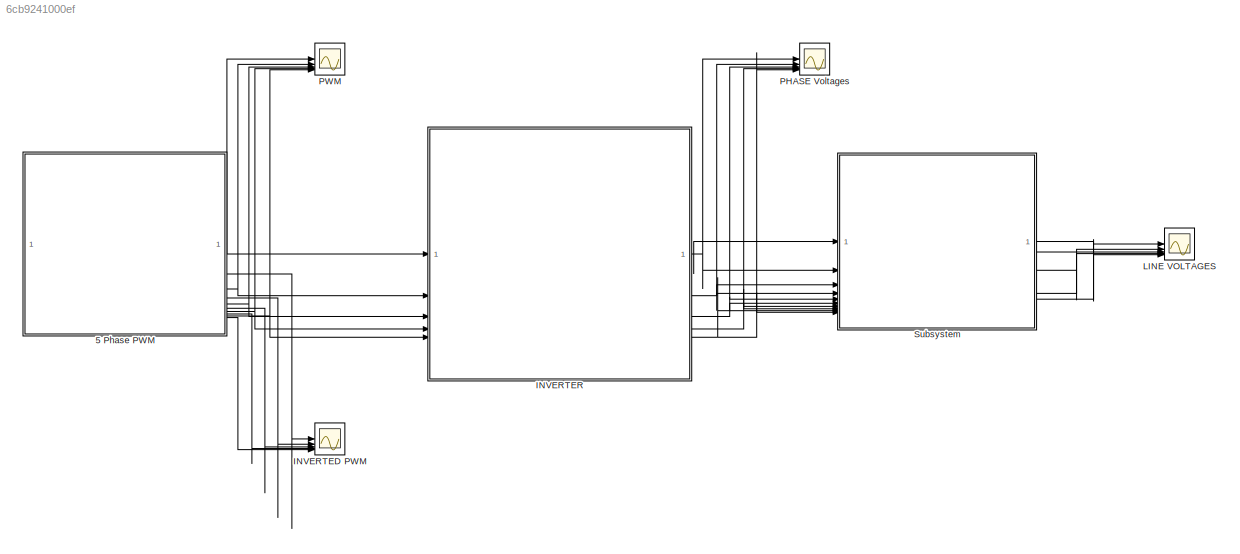
MODEL slx_6cb9241000ef
KIND model
CONFIG AbsTol = auto
CONFIG EnableMultiTasking = off
CONFIG FixedStep = 10e-6
CONFIG MaxStep = auto
CONFIG MinStep = auto
CONFIG RelTol = 1e-3
CONFIG SampleTimeConstraint = Unconstrained
CONFIG SolverName = FixedStepAuto
CONFIG StartTime = 0.0
CONFIG StopTime = 1
BLOCK [Scope]  PWM
  Floating = off
  NumInputPorts = 5
  ScopeSpecificationString = Simulink.scopes.TimeScopeBlockCfg('CurrentConfiguration', extmgr.ConfigurationSet(extmgr.Configuration('Core','General UI',true),extmgr.Configuration('Core','Source UI',true),extmgr.Configuration('Sources','WiredSimulink',true,'DataLoggingVariableName','ScopeData2'),extmgr.Configuration('Visuals','Time Domain',true,'SerializedDisplays',{struct('MinYLimReal','-0.125','MaxYLimReal','1.125','YLabelRe...<+6831ch>
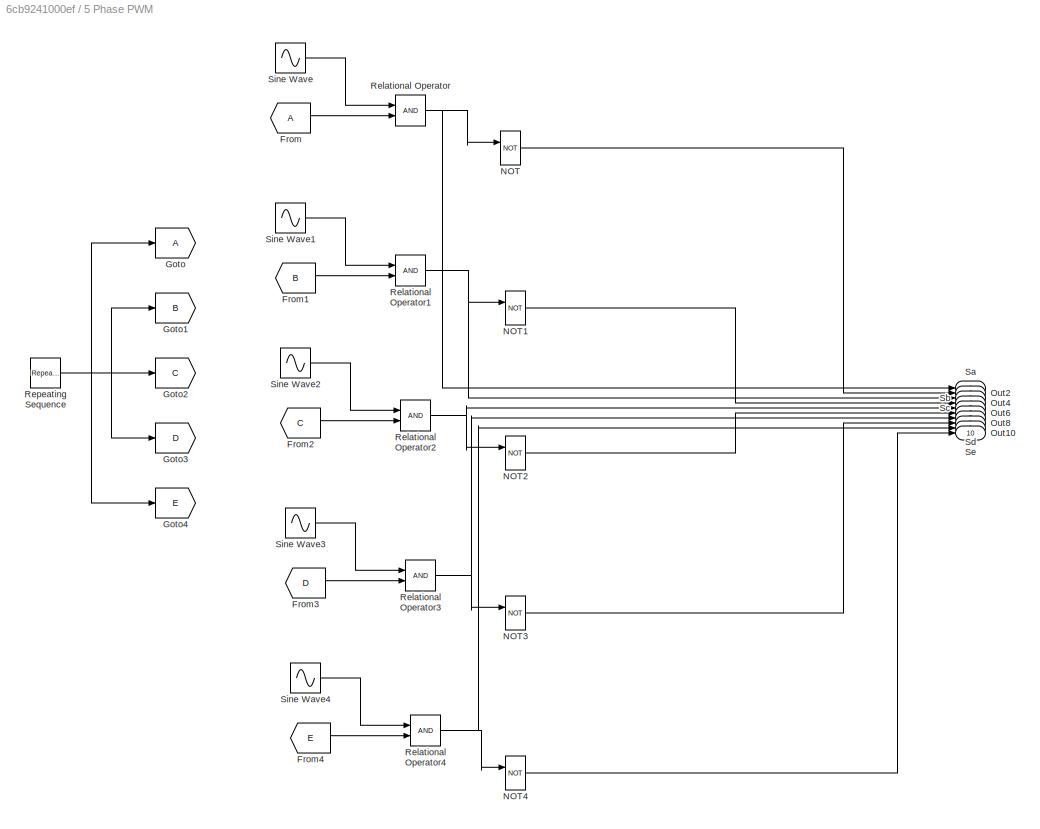
BLOCK [SubSystem] 5 Phase PWM
BLOCK [From] 5 Phase PWM/From
BLOCK [From] 5 Phase PWM/From1
  GotoTag = B
BLOCK [From] 5 Phase PWM/From2
  GotoTag = C
BLOCK [From] 5 Phase PWM/From3
  GotoTag = D
BLOCK [From] 5 Phase PWM/From4
  GotoTag = E
BLOCK [Goto] 5 Phase PWM/Goto
BLOCK [Goto] 5 Phase PWM/Goto1
  GotoTag = B
BLOCK [Goto] 5 Phase PWM/Goto2
  GotoTag = C
BLOCK [Goto] 5 Phase PWM/Goto3
  GotoTag = D
BLOCK [Goto] 5 Phase PWM/Goto4
  GotoTag = E
BLOCK [Logic] 5 Phase PWM/NOT
  AllPortsSameDT = off
  IconShape = distinctive
  Operator = NOT
  OutDataTypeStr = boolean
BLOCK [Logic] 5 Phase PWM/NOT1
  AllPortsSameDT = off
  IconShape = distinctive
  Operator = NOT
  OutDataTypeStr = boolean
BLOCK [Logic] 5 Phase PWM/NOT2
  AllPortsSameDT = off
  IconShape = distinctive
  Operator = NOT
  OutDataTypeStr = boolean
BLOCK [Logic] 5 Phase PWM/NOT3
  AllPortsSameDT = off
  IconShape = distinctive
  Operator = NOT
  OutDataTypeStr = boolean
BLOCK [Logic] 5 Phase PWM/NOT4
  AllPortsSameDT = off
  IconShape = distinctive
  Operator = NOT
  OutDataTypeStr = boolean
BLOCK [Outport] 5 Phase PWM/Out10
  Port = 10
BLOCK [Outport] 5 Phase PWM/Out2
  Port = 2
BLOCK [Outport] 5 Phase PWM/Out4
  Port = 4
BLOCK [Outport] 5 Phase PWM/Out6
  Port = 6
BLOCK [Outport] 5 Phase PWM/Out8
  Port = 8
BLOCK [RelationalOperator] 5 Phase PWM/Relational Operator
  InputSameDT = off
  OutDataTypeStr = boolean
  RndMeth = Simplest
BLOCK [RelationalOperator] 5 Phase PWM/Relational Operator1
  InputSameDT = off
  OutDataTypeStr = boolean
  RndMeth = Simplest
BLOCK [RelationalOperator] 5 Phase PWM/Relational Operator2
  InputSameDT = off
  OutDataTypeStr = boolean
  RndMeth = Simplest
BLOCK [RelationalOperator] 5 Phase PWM/Relational Operator3
  InputSameDT = off
  OutDataTypeStr = boolean
  RndMeth = Simplest
BLOCK [RelationalOperator] 5 Phase PWM/Relational Operator4
  InputSameDT = off
  OutDataTypeStr = boolean
  RndMeth = Simplest
BLOCK [Reference] 5 Phase PWM/Repeating Sequence  REF=simulink/Sources/Repeating
Sequence
  SourceBlock = simulink/Sources/Repeating\nSequence
  SourceType = Repeating table
BLOCK [Outport] 5 Phase PWM/Sa
BLOCK [Outport] 5 Phase PWM/Sb
  Port = 3
BLOCK [Outport] 5 Phase PWM/Sc
  Port = 5
BLOCK [Outport] 5 Phase PWM/Sd
  Port = 7
BLOCK [Outport] 5 Phase PWM/Se
  Port = 9
BLOCK [Sin] 5 Phase PWM/Sine Wave
  Amplitude = 0.9
  Frequency = 2*pi*50
  SampleTime = 0
BLOCK [Sin] 5 Phase PWM/Sine Wave1
  Amplitude = 0.9
  Frequency = 2*pi*50
  Phase = (2*pi)/5
  SampleTime = 0
BLOCK [Sin] 5 Phase PWM/Sine Wave2
  Amplitude = 0.9
  Frequency = 2*pi*50
  Phase = (4*pi)/5
  SampleTime = 0
BLOCK [Sin] 5 Phase PWM/Sine Wave3
  Amplitude = 0.9
  Frequency = 2*pi*50
  Phase = (6*pi)/5
  SampleTime = 0
BLOCK [Sin] 5 Phase PWM/Sine Wave4
  Amplitude = 0.9
  Frequency = 2*pi*50
  Phase = (8*pi)/5
  SampleTime = 0
BLOCK [Scope] INVERTED PWM
  Floating = off
  NumInputPorts = 5
  ScopeSpecificationString = Simulink.scopes.TimeScopeBlockCfg('CurrentConfiguration', extmgr.ConfigurationSet(extmgr.Configuration('Core','General UI',true),extmgr.Configuration('Core','Source UI',true),extmgr.Configuration('Sources','WiredSimulink',true),extmgr.Configuration('Visuals','Time Domain',true,'SerializedDisplays',{struct('MinYLimReal','-0.125','MaxYLimReal','1.125','YLabelReal','','MinYLimMag','0.00000','MaxYLimM...<+6792ch>
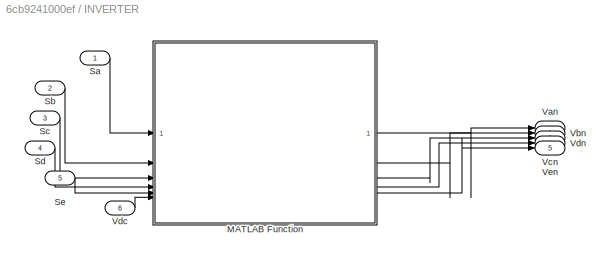
BLOCK [SubSystem] INVERTER
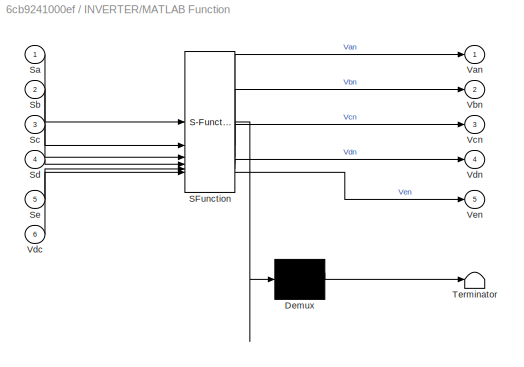
BLOCK [SubSystem] INVERTER/MATLAB Function
  ErrorFcn = Stateflow.Translate.translate
  PermitHierarchicalResolution = ExplicitOnly
  SFBlockType = MATLAB Function
  TreatAsAtomicUnit = on
BLOCK [Demux] INVERTER/MATLAB Function/ Demux 
  Outputs = 1
BLOCK [S-Function] INVERTER/MATLAB Function/ SFunction 
  EnableBusSupport = on
  FunctionName = sf_sfun
  PortCounts = [6 6]
  SFcnIsStateOwnerBlock = off
  SFunctionDeploymentMode = off
  Tag = Stateflow S-Function 2
BLOCK [Terminator] INVERTER/MATLAB Function/ Terminator 
BLOCK [Inport] INVERTER/MATLAB Function/Sa
BLOCK [Inport] INVERTER/MATLAB Function/Sb
  Port = 2
BLOCK [Inport] INVERTER/MATLAB Function/Sc
  Port = 3
BLOCK [Inport] INVERTER/MATLAB Function/Sd
  Port = 4
BLOCK [Inport] INVERTER/MATLAB Function/Se
  Port = 5
BLOCK [Outport] INVERTER/MATLAB Function/Van
BLOCK [Outport] INVERTER/MATLAB Function/Vbn
  Port = 2
BLOCK [Outport] INVERTER/MATLAB Function/Vcn
  Port = 3
BLOCK [Inport] INVERTER/MATLAB Function/Vdc
  Port = 6
BLOCK [Outport] INVERTER/MATLAB Function/Vdn
  Port = 4
BLOCK [Outport] INVERTER/MATLAB Function/Ven
  Port = 5
BLOCK [Inport] INVERTER/Sa
BLOCK [Inport] INVERTER/Sb
  Port = 2
BLOCK [Inport] INVERTER/Sc
  Port = 3
BLOCK [Inport] INVERTER/Sd
  Port = 4
BLOCK [Inport] INVERTER/Se
  Port = 5
BLOCK [Outport] INVERTER/Van
BLOCK [Outport] INVERTER/Vbn
  Port = 2
BLOCK [Outport] INVERTER/Vcn
  Port = 3
BLOCK [Inport] INVERTER/Vdc
  Port = 6
BLOCK [Outport] INVERTER/Vdn
  Port = 4
BLOCK [Outport] INVERTER/Ven
  Port = 5
BLOCK [Scope] LINE VOLTAGES
  Floating = off
  NumInputPorts = 5
  ScopeSpecificationString = Simulink.scopes.TimeScopeBlockCfg('CurrentConfiguration', extmgr.ConfigurationSet(extmgr.Configuration('Core','General UI',true),extmgr.Configuration('Core','Source UI',true),extmgr.Configuration('Sources','WiredSimulink',true,'DataLoggingVariableName','ScopeData3'),extmgr.Configuration('Visuals','Time Domain',true,'SerializedDisplays',{struct('MinYLimReal','-312.5','MaxYLimReal','312.5','YLabelRe...<+5059ch>
BLOCK [Scope] PHASE Voltages
  Floating = off
  NumInputPorts = 5
  ScopeSpecificationString = Simulink.scopes.TimeScopeBlockCfg('CurrentConfiguration', extmgr.ConfigurationSet(extmgr.Configuration('Core','General UI',true),extmgr.Configuration('Core','Source UI',true),extmgr.Configuration('Sources','WiredSimulink',true,'DataLoggingVariableName','ScopeData1'),extmgr.Configuration('Visuals','Time Domain',true,'SerializedDisplays',{struct('MinYLimReal','-250.00000','MaxYLimReal','250.00000','...<+5108ch>
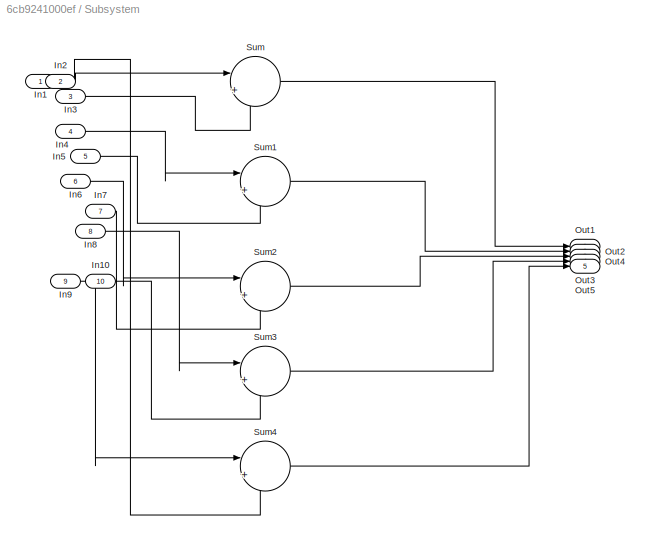
BLOCK [SubSystem] Subsystem
BLOCK [Inport] Subsystem/In1
BLOCK [Inport] Subsystem/In10
  Port = 10
BLOCK [Inport] Subsystem/In2
  Port = 2
BLOCK [Inport] Subsystem/In3
  Port = 3
BLOCK [Inport] Subsystem/In4
  Port = 4
BLOCK [Inport] Subsystem/In5
  Port = 5
BLOCK [Inport] Subsystem/In6
  Port = 6
BLOCK [Inport] Subsystem/In7
  Port = 7
BLOCK [Inport] Subsystem/In8
  Port = 8
BLOCK [Inport] Subsystem/In9
  Port = 9
BLOCK [Outport] Subsystem/Out1
BLOCK [Outport] Subsystem/Out2
  Port = 2
BLOCK [Outport] Subsystem/Out3
  Port = 3
BLOCK [Outport] Subsystem/Out4
  Port = 4
BLOCK [Outport] Subsystem/Out5
  Port = 5
BLOCK [Sum] Subsystem/Sum
  Inputs = |+-
BLOCK [Sum] Subsystem/Sum1
  Inputs = |+-
BLOCK [Sum] Subsystem/Sum2
  Inputs = |+-
BLOCK [Sum] Subsystem/Sum3
  Inputs = |+-
BLOCK [Sum] Subsystem/Sum4
  Inputs = |+-
LINE 5 Phase PWM/From1:1 -> 5 Phase PWM/Relational Operator1:2
LINE 5 Phase PWM/From2:1 -> 5 Phase PWM/Relational Operator2:2
LINE 5 Phase PWM/From3:1 -> 5 Phase PWM/Relational Operator3:2
LINE 5 Phase PWM/From4:1 -> 5 Phase PWM/Relational Operator4:2
LINE 5 Phase PWM/From:1 -> 5 Phase PWM/Relational Operator:2
LINE 5 Phase PWM/NOT1:1 -> 5 Phase PWM/Out4:1
LINE 5 Phase PWM/NOT2:1 -> 5 Phase PWM/Out6:1
LINE 5 Phase PWM/NOT3:1 -> 5 Phase PWM/Out8:1
LINE 5 Phase PWM/NOT4:1 -> 5 Phase PWM/Out10:1
LINE 5 Phase PWM/NOT:1 -> 5 Phase PWM/Out2:1
NET 5 Phase PWM/Relational Operator1:1 -> 5 Phase PWM/NOT1:1, 5 Phase PWM/Sb:1
NET 5 Phase PWM/Relational Operator2:1 -> 5 Phase PWM/NOT2:1, 5 Phase PWM/Sc:1
NET 5 Phase PWM/Relational Operator3:1 -> 5 Phase PWM/NOT3:1, 5 Phase PWM/Sd:1
NET 5 Phase PWM/Relational Operator4:1 -> 5 Phase PWM/NOT4:1, 5 Phase PWM/Se:1
NET 5 Phase PWM/Relational Operator:1 -> 5 Phase PWM/NOT:1, 5 Phase PWM/Sa:1
NET 5 Phase PWM/Repeating Sequence:1 -> 5 Phase PWM/Goto1:1, 5 Phase PWM/Goto2:1, 5 Phase PWM/Goto3:1, 5 Phase PWM/Goto4:1, 5 Phase PWM/Goto:1
LINE 5 Phase PWM/Sine Wave1:1 -> 5 Phase PWM/Relational Operator1:1
LINE 5 Phase PWM/Sine Wave2:1 -> 5 Phase PWM/Relational Operator2:1
LINE 5 Phase PWM/Sine Wave3:1 -> 5 Phase PWM/Relational Operator3:1
LINE 5 Phase PWM/Sine Wave4:1 -> 5 Phase PWM/Relational Operator4:1
LINE 5 Phase PWM/Sine Wave:1 -> 5 Phase PWM/Relational Operator:1
NET 5 Phase PWM:1 ->  PWM:1, INVERTER:1
LINE 5 Phase PWM:10 -> INVERTED PWM:5
LINE 5 Phase PWM:2 -> INVERTED PWM:1
NET 5 Phase PWM:3 ->  PWM:2, INVERTER:2
LINE 5 Phase PWM:4 -> INVERTED PWM:2
NET 5 Phase PWM:5 ->  PWM:3, INVERTER:3
LINE 5 Phase PWM:6 -> INVERTED PWM:3
NET 5 Phase PWM:7 ->  PWM:4, INVERTER:4
LINE 5 Phase PWM:8 -> INVERTED PWM:4
NET 5 Phase PWM:9 ->  PWM:5, INVERTER:5
LINE INVERTER/MATLAB Function:1 -> INVERTER/Van:1
LINE INVERTER/MATLAB Function:2 -> INVERTER/Vbn:1
LINE INVERTER/MATLAB Function:3 -> INVERTER/Vcn:1
LINE INVERTER/MATLAB Function:4 -> INVERTER/Vdn:1
LINE INVERTER/MATLAB Function:5 -> INVERTER/Ven:1
LINE INVERTER/Sa:1 -> INVERTER/MATLAB Function:1
LINE INVERTER/Sb:1 -> INVERTER/MATLAB Function:2
LINE INVERTER/Sc:1 -> INVERTER/MATLAB Function:3
LINE INVERTER/Sd:1 -> INVERTER/MATLAB Function:4
LINE INVERTER/Se:1 -> INVERTER/MATLAB Function:5
LINE INVERTER/Vdc:1 -> INVERTER/MATLAB Function:6
NET INVERTER:1 -> PHASE Voltages:1, Subsystem:1, Subsystem:2
NET INVERTER:2 -> PHASE Voltages:2, Subsystem:3, Subsystem:4
NET INVERTER:3 -> PHASE Voltages:3, Subsystem:5, Subsystem:6
NET INVERTER:4 -> PHASE Voltages:4, Subsystem:7, Subsystem:8
NET INVERTER:5 -> PHASE Voltages:5, Subsystem:10, Subsystem:9
LINE Subsystem/In10:1 -> Subsystem/Sum3:2
LINE Subsystem/In1:1 -> Subsystem/Sum4:2
LINE Subsystem/In2:1 -> Subsystem/Sum:1
LINE Subsystem/In3:1 -> Subsystem/Sum:2
LINE Subsystem/In4:1 -> Subsystem/Sum1:1
LINE Subsystem/In5:1 -> Subsystem/Sum1:2
LINE Subsystem/In6:1 -> Subsystem/Sum2:1
LINE Subsystem/In7:1 -> Subsystem/Sum2:2
LINE Subsystem/In8:1 -> Subsystem/Sum3:1
LINE Subsystem/In9:1 -> Subsystem/Sum4:1
LINE Subsystem/Sum1:1 -> Subsystem/Out2:1
LINE Subsystem/Sum2:1 -> Subsystem/Out3:1
LINE Subsystem/Sum3:1 -> Subsystem/Out4:1
LINE Subsystem/Sum4:1 -> Subsystem/Out5:1
LINE Subsystem/Sum:1 -> Subsystem/Out1:1
LINE Subsystem:1 -> LINE VOLTAGES:1
LINE Subsystem:2 -> LINE VOLTAGES:2
LINE Subsystem:3 -> LINE VOLTAGES:3
LINE Subsystem:4 -> LINE VOLTAGES:4
LINE Subsystem:5 -> LINE VOLTAGES:5
note: NET lines group one-source signal fan-out (src -> all destinations, sorted); 1:1 wires keep LINE
CHART INVERTER/MATLAB Function states=1 transitions=1
  STATE_LABEL 'eML_blk_kernel()'
  STATE_LABEL 'SCRIPT:\nfunction [Van,Vbn,Vcn,Vdn,Ven]= fcn(Sa,Sb,Sc,Sd,Se,Vdc)\nVdc=100;\nVan=(Vdc/2)*[(4*Sa)-Sb-Sc-Sd-Se];\nVbn=(Vdc/2)*[-Sa+(4*Sb)-Sc-Sd-Se];\nVcn=(Vdc/2)*[-Sa-Sb+(4*Sc)-Sd-Se];\nVdn=(Vdc/2)*[-Sa-Sb-Sc+(4*Sd)-Se];\nVen=(Vdc/2)*[-Sa-Sb-Sc-Sd+(4*Se)];\nend'
CHART  states=0 transitions=0
